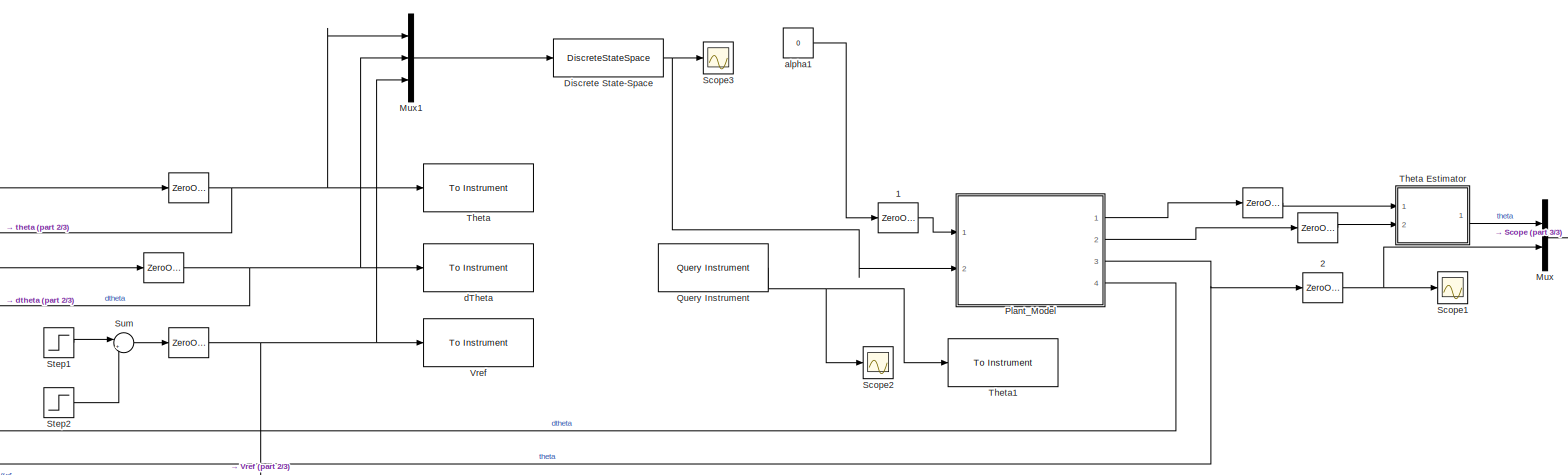
[diagram: root canvas - part 1/3, center side, full height]
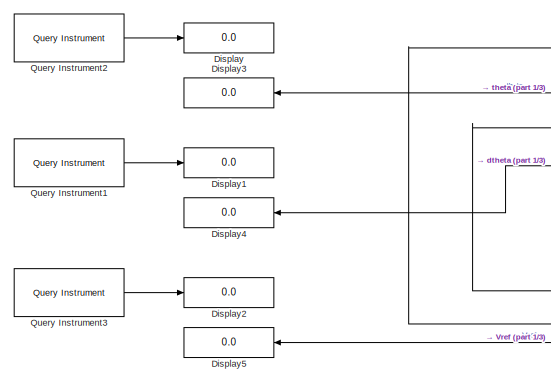
[diagram: root canvas - part 2/3, middle left region]
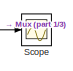
[diagram: root canvas - part 3/3, middle right region]
MODEL slx_5fc166b95c6e
KIND model
CONFIG AbsTol = auto
CONFIG EnableMultiTasking = off
CONFIG FixedStep = T
CONFIG MaxStep = auto
CONFIG MinStep = auto
CONFIG RelTol = 1e-3
CONFIG SampleTimeConstraint = Unconstrained
CONFIG Solver = FixedStepAuto
CONFIG SolverName = FixedStepAuto
CONFIG StartTime = 0.0
CONFIG StopTime = 20
BLOCK [ZeroOrderHold]  
  SampleTime = T
BLOCK [ZeroOrderHold]    
  SampleTime = T
BLOCK [ZeroOrderHold]     
  SampleTime = T
BLOCK [ZeroOrderHold]       
  SampleTime = T
BLOCK [ZeroOrderHold]         
  SampleTime = T
BLOCK [ZeroOrderHold]       1
  SampleTime = T
BLOCK [ZeroOrderHold]       2
  SampleTime = T
BLOCK [DiscreteStateSpace] Discrete State-Space
  A = Ad
  B = Bd
  C = Cd
  D = Dd
  SampleTime = T
BLOCK [Display] Display
  Decimation = 1
  Ports = [1]
BLOCK [Display] Display1
  Decimation = 1
  Ports = [1]
BLOCK [Display] Display2
  Decimation = 1
  Ports = [1]
BLOCK [Display] Display3
  Decimation = 1
  Ports = [1]
BLOCK [Display] Display4
  Decimation = 1
  Ports = [1]
BLOCK [Display] Display5
  Decimation = 1
  Ports = [1]
BLOCK [Mux] Mux
  DisplayOption = bar
  Inputs = 2
  Ports = [2, 1]
BLOCK [Mux] Mux1
  DisplayOption = bar
  Inputs = 3
  Ports = [3, 1]
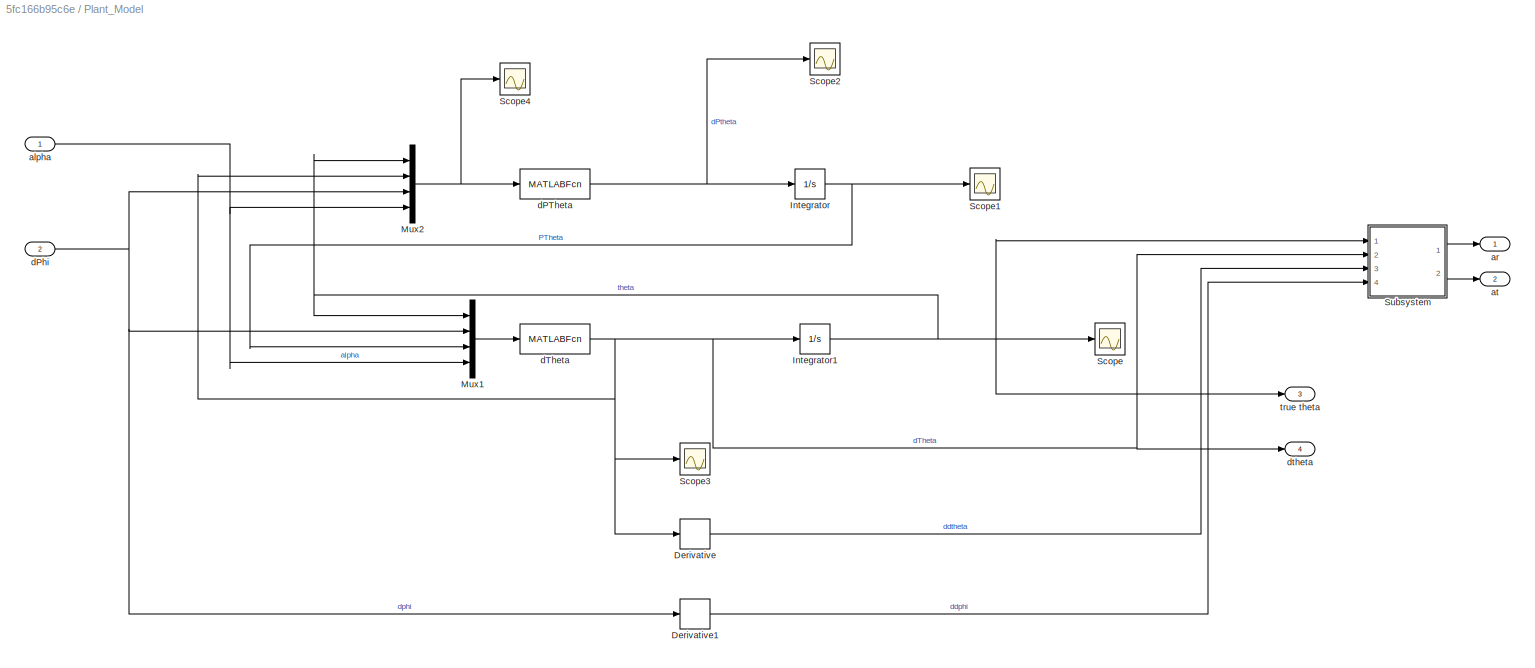
BLOCK [SubSystem] Plant_Model
  Ports = [2, 4]
  RequestExecContextInheritance = off
  Variant = off
BLOCK [Derivative] Plant_Model/Derivative
BLOCK [Derivative] Plant_Model/Derivative1
BLOCK [Integrator] Plant_Model/Integrator
  InitialCondition = Ptheta0
  Ports = [1, 1]
BLOCK [Integrator] Plant_Model/Integrator1
  InitialCondition = 0.1
  Ports = [1, 1]
BLOCK [Mux] Plant_Model/Mux1
  DisplayOption = bar
  Inputs = [1 1 1 1]
  Ports = [4, 1]
BLOCK [Mux] Plant_Model/Mux2
  DisplayOption = bar
  Inputs = [1 1 1 1]
  Ports = [4, 1]
BLOCK [Scope] Plant_Model/Scope
  NumInputPorts = 1
  Ports = [1]
  ScopeSpecificationString = Simulink.scopes.TimeScopeBlockCfg('CurrentConfiguration', extmgr.ConfigurationSet(extmgr.Configuration('Core','General UI',true),extmgr.Configuration('Core','Source UI',true),extmgr.Configuration('Sources','WiredSimulink',true),extmgr.Configuration('Visuals','Time Domain',true,'SerializedDisplays',{struct('MinYLimReal','-0.62943','MaxYLimReal','0.64888','YLabelReal','','MinYLimMag','0.00000','MaxY...<+1402ch>
BLOCK [Scope] Plant_Model/Scope1
  NumInputPorts = 1
  Ports = [1]
  ScopeSpecificationString = Simulink.scopes.TimeScopeBlockCfg('CurrentConfiguration', extmgr.ConfigurationSet(extmgr.Configuration('Core','General UI',true),extmgr.Configuration('Core','Source UI',true),extmgr.Configuration('Sources','WiredSimulink',true,'DataLoggingVariableName','ScopeData1'),extmgr.Configuration('Visuals','Time Domain',true,'SerializedDisplays',{struct('MinYLimReal','-1.00000','MaxYLimReal','1.00000','YLab...<+1426ch>
BLOCK [Scope] Plant_Model/Scope2
  NumInputPorts = 1
  Ports = [1]
  ScopeSpecificationString = Simulink.scopes.TimeScopeBlockCfg('CurrentConfiguration', extmgr.ConfigurationSet(extmgr.Configuration('Core','General UI',true),extmgr.Configuration('Core','Source UI',true),extmgr.Configuration('Sources','WiredSimulink',true,'DataLoggingVariableName','ScopeData2'),extmgr.Configuration('Visuals','Time Domain',true,'SerializedDisplays',{struct('MinYLimReal','-2761470967.33558','MaxYLimReal','27610...<+1463ch>
BLOCK [Scope] Plant_Model/Scope3
  NumInputPorts = 1
  Ports = [1]
  ScopeSpecificationString = Simulink.scopes.TimeScopeBlockCfg('CurrentConfiguration', extmgr.ConfigurationSet(extmgr.Configuration('Core','General UI',true),extmgr.Configuration('Core','Source UI',true),extmgr.Configuration('Sources','WiredSimulink',true,'DataLoggingVariableName','ScopeData3'),extmgr.Configuration('Visuals','Time Domain',true,'SerializedDisplays',{struct('MinYLimReal','-0.20128','MaxYLimReal','0.40169','YLab...<+1396ch>
BLOCK [Scope] Plant_Model/Scope4
  NumInputPorts = 1
  Ports = [1]
  ScopeSpecificationString = Simulink.scopes.TimeScopeBlockCfg('CurrentConfiguration', extmgr.ConfigurationSet(extmgr.Configuration('Core','General UI',true),extmgr.Configuration('Core','Source UI',true),extmgr.Configuration('Sources','WiredSimulink',true,'DataLoggingVariableName','ScopeData6'),extmgr.Configuration('Visuals','Time Domain',true,'SerializedDisplays',{struct('MinYLimReal','-53041074534.89084','MaxYLimReal','4773...<+1495ch>
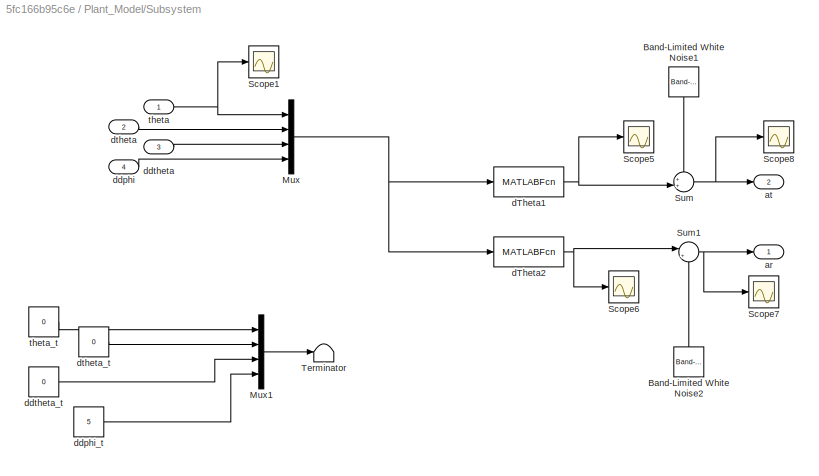
BLOCK [SubSystem] Plant_Model/Subsystem
  Ports = [4, 2]
  RequestExecContextInheritance = off
  Variant = off
BLOCK [Reference] Plant_Model/Subsystem/Band-Limited White Noise1  REF=simulink/Sources/Band-Limited
White Noise
  Ports = [0, 1]
  SourceBlock = simulink/Sources/Band-Limited\nWhite Noise
  SourceProductBaseCode = SL
  SourceProductName = Simulink
  SourceType = Band-Limited White Noise.
BLOCK [Reference] Plant_Model/Subsystem/Band-Limited White Noise2  REF=simulink/Sources/Band-Limited
White Noise
  Ports = [0, 1]
  SourceBlock = simulink/Sources/Band-Limited\nWhite Noise
  SourceProductBaseCode = SL
  SourceProductName = Simulink
  SourceType = Band-Limited White Noise.
BLOCK [Mux] Plant_Model/Subsystem/Mux
  DisplayOption = bar
  Ports = [4, 1]
BLOCK [Mux] Plant_Model/Subsystem/Mux1
  DisplayOption = bar
  Ports = [4, 1]
BLOCK [Scope] Plant_Model/Subsystem/Scope1
  NumInputPorts = 1
  Ports = [1]
  ScopeSpecificationString = Simulink.scopes.TimeScopeBlockCfg('CurrentConfiguration', extmgr.ConfigurationSet(extmgr.Configuration('Core','General UI',true),extmgr.Configuration('Core','Source UI',true),extmgr.Configuration('Sources','WiredSimulink',true,'DataLoggingVariableName','ScopeData1'),extmgr.Configuration('Visuals','Time Domain',true,'SerializedDisplays',{struct('MinYLimReal','-1.00000','MaxYLimReal','1.00000','YLab...<+1469ch>
BLOCK [Scope] Plant_Model/Subsystem/Scope5
  NumInputPorts = 1
  Ports = [1]
  ScopeSpecificationString = Simulink.scopes.TimeScopeBlockCfg('CurrentConfiguration', extmgr.ConfigurationSet(extmgr.Configuration('Core','General UI',true),extmgr.Configuration('Core','Source UI',true),extmgr.Configuration('Sources','WiredSimulink',true,'DataLoggingVariableName','ScopeData1'),extmgr.Configuration('Visuals','Time Domain',true,'SerializedDisplays',{struct('MinYLimReal','-1.00000','MaxYLimReal','1.00000','YLab...<+1470ch>
BLOCK [Scope] Plant_Model/Subsystem/Scope6
  NumInputPorts = 1
  Ports = [1]
  ScopeSpecificationString = Simulink.scopes.TimeScopeBlockCfg('CurrentConfiguration', extmgr.ConfigurationSet(extmgr.Configuration('Core','General UI',true),extmgr.Configuration('Core','Source UI',true),extmgr.Configuration('Sources','WiredSimulink',true,'DataLoggingVariableName','ScopeData2'),extmgr.Configuration('Visuals','Time Domain',true,'SerializedDisplays',{struct('MinYLimReal','9.62428','MaxYLimReal','9.9909','YLabel...<+1416ch>
BLOCK [Scope] Plant_Model/Subsystem/Scope7
  NumInputPorts = 1
  Ports = [1]
  ScopeSpecificationString = Simulink.scopes.TimeScopeBlockCfg('CurrentConfiguration', extmgr.ConfigurationSet(extmgr.Configuration('Core','General UI',true),extmgr.Configuration('Core','Source UI',true),extmgr.Configuration('Sources','WiredSimulink',true,'DataLoggingVariableName','ScopeData1'),extmgr.Configuration('Visuals','Time Domain',true,'SerializedDisplays',{struct('MinYLimReal','-1169.51957','MaxYLimReal','10427.46336...<+1445ch>
BLOCK [Scope] Plant_Model/Subsystem/Scope8
  NumInputPorts = 1
  Ports = [1]
  ScopeSpecificationString = Simulink.scopes.TimeScopeBlockCfg('CurrentConfiguration', extmgr.ConfigurationSet(extmgr.Configuration('Core','General UI',true),extmgr.Configuration('Core','Source UI',true),extmgr.Configuration('Sources','WiredSimulink',true,'DataLoggingVariableName','ScopeData2'),extmgr.Configuration('Visuals','Time Domain',true,'SerializedDisplays',{struct('MinYLimReal','-14365979.81975','MaxYLimReal','1596220...<+1470ch>
BLOCK [Sum] Plant_Model/Subsystem/Sum
  IconShape = round
  InputSameDT = off
  Inputs = ++|
  OutDataTypeStr = Inherit: Inherit via internal rule
  Ports = [2, 1]
  SaturateOnIntegerOverflow = off
BLOCK [Sum] Plant_Model/Subsystem/Sum1
  IconShape = round
  InputSameDT = off
  Inputs = |++
  OutDataTypeStr = Inherit: Inherit via internal rule
  Ports = [2, 1]
  SaturateOnIntegerOverflow = off
BLOCK [Terminator] Plant_Model/Subsystem/Terminator
BLOCK [Outport] Plant_Model/Subsystem/ar
  IconDisplay = Port number
  PortDimensions = [1 1]
BLOCK [Outport] Plant_Model/Subsystem/at
  IconDisplay = Port number
  Port = 2
  PortDimensions = [1 1]
BLOCK [MATLABFcn] Plant_Model/Subsystem/dTheta1
  MATLABFcn = Eqn3
  Output1D = off
  OutputDimensions = [1 1]
  Ports = [1, 1]
BLOCK [MATLABFcn] Plant_Model/Subsystem/dTheta2
  MATLABFcn = Eqn4
  Output1D = off
  OutputDimensions = [1 1]
  Ports = [1, 1]
BLOCK [Inport] Plant_Model/Subsystem/ddphi
  IconDisplay = Port number
  Port = 4
BLOCK [Constant] Plant_Model/Subsystem/ddphi_t
  Value = 5
BLOCK [Inport] Plant_Model/Subsystem/ddtheta
  IconDisplay = Port number
  Port = 3
BLOCK [Constant] Plant_Model/Subsystem/ddtheta_t
  Value = 0
BLOCK [Inport] Plant_Model/Subsystem/dtheta
  IconDisplay = Port number
  Port = 2
BLOCK [Constant] Plant_Model/Subsystem/dtheta_t
  Value = 0
BLOCK [Inport] Plant_Model/Subsystem/theta
  IconDisplay = Port number
BLOCK [Constant] Plant_Model/Subsystem/theta_t
  Value = 0
BLOCK [Inport] Plant_Model/alpha 
  IconDisplay = Port number
BLOCK [Outport] Plant_Model/ar
  IconDisplay = Port number
  PortDimensions = [1 1]
BLOCK [Outport] Plant_Model/at
  IconDisplay = Port number
  Port = 2
  PortDimensions = [1 1]
BLOCK [MATLABFcn] Plant_Model/dPTheta
  MATLABFcn = Eqn1
  Output1D = off
  OutputDimensions = [1 1]
  Ports = [1, 1]
BLOCK [Inport] Plant_Model/dPhi
  IconDisplay = Port number
  Port = 2
BLOCK [MATLABFcn] Plant_Model/dTheta
  MATLABFcn = Eqn2
  Output1D = off
  OutputDimensions = [1 1]
  Ports = [1, 1]
BLOCK [Outport] Plant_Model/dtheta
  IconDisplay = Port number
  Port = 4
  PortDimensions = [1 1]
BLOCK [Outport] Plant_Model/true theta
  IconDisplay = Port number
  Port = 3
  PortDimensions = [1 1]
BLOCK [Reference] Query Instrument  REF=instrumentlib/Query Instrument
  Commented = on
  Ports = [0, 1]
  Priority = 7
  SourceBlock = instrumentlib/Query Instrument
  SourceProductBaseCode = IC
  SourceProductName = Instrument Control Toolbox
  SourceType = queryinstrument
BLOCK [Reference] Query Instrument1  REF=instrumentlib/Query Instrument
  Commented = on
  Ports = [0, 1]
  Priority = 5
  SourceBlock = instrumentlib/Query Instrument
  SourceProductBaseCode = IC
  SourceProductName = Instrument Control Toolbox
  SourceType = queryinstrument
BLOCK [Reference] Query Instrument2  REF=instrumentlib/Query Instrument
  Commented = on
  Ports = [0, 1]
  Priority = 4
  SourceBlock = instrumentlib/Query Instrument
  SourceProductBaseCode = IC
  SourceProductName = Instrument Control Toolbox
  SourceType = queryinstrument
BLOCK [Reference] Query Instrument3  REF=instrumentlib/Query Instrument
  Commented = on
  Ports = [0, 1]
  Priority = 6
  SourceBlock = instrumentlib/Query Instrument
  SourceProductBaseCode = IC
  SourceProductName = Instrument Control Toolbox
  SourceType = queryinstrument
BLOCK [Scope] Scope
  NumInputPorts = 1
  Ports = [1]
  ScopeSpecificationString = Simulink.scopes.TimeScopeBlockCfg('CurrentConfiguration', extmgr.ConfigurationSet(extmgr.Configuration('Core','General UI',true),extmgr.Configuration('Core','Source UI',true),extmgr.Configuration('Sources','WiredSimulink',true),extmgr.Configuration('Visuals','Time Domain',true,'SerializedDisplays',{struct('MinYLimReal','-0.14443','MaxYLimReal','0.12907','YLabelReal','','MinYLimMag','0.00000','MaxY...<+1383ch>
BLOCK [Scope] Scope1
  NumInputPorts = 1
  Ports = [1]
  ScopeSpecificationString = Simulink.scopes.TimeScopeBlockCfg('CurrentConfiguration', extmgr.ConfigurationSet(extmgr.Configuration('Core','General UI',true,'FigureColor',[1 1 1]),extmgr.Configuration('Core','Source UI',true),extmgr.Configuration('Sources','WiredSimulink',true,'DataLoggingVariableName','ScopeData1'),extmgr.Configuration('Visuals','Time Domain',true,'SerializedDisplays',{struct('MinYLimReal','-0.14443','MaxYLi...<+1653ch>
BLOCK [Scope] Scope2
  NumInputPorts = 1
  Ports = [1]
  ScopeSpecificationString = Simulink.scopes.TimeScopeBlockCfg('CurrentConfiguration', extmgr.ConfigurationSet(extmgr.Configuration('Core','General UI',true),extmgr.Configuration('Core','Source UI',true),extmgr.Configuration('Sources','WiredSimulink',true,'DataLoggingVariableName','ScopeData1'),extmgr.Configuration('Visuals','Time Domain',true,'SerializedDisplays',{struct('MinYLimReal','-10.79572','MaxYLimReal','13.43175','YL...<+1486ch>
BLOCK [Scope] Scope3
  NumInputPorts = 1
  Ports = [1]
  ScopeSpecificationString = Simulink.scopes.TimeScopeBlockCfg('CurrentConfiguration', extmgr.ConfigurationSet(extmgr.Configuration('Core','General UI',true,'FigureColor',[1 1 1]),extmgr.Configuration('Core','Source UI',true),extmgr.Configuration('Sources','WiredSimulink',true,'DataLoggingVariableName','ScopeData1'),extmgr.Configuration('Visuals','Time Domain',true,'SerializedDisplays',{struct('MinYLimReal','-13.33771','MaxYL...<+1700ch>
BLOCK [Step] Step1
  After = -.5
  SampleTime = 0
  Time = 0
BLOCK [Step] Step2
  After = .5
  SampleTime = 0
  Time = 5
BLOCK [Sum] Sum
  IconShape = round
  InputSameDT = off
  Inputs = |++
  OutDataTypeStr = Inherit: Inherit via internal rule
  Ports = [2, 1]
  SaturateOnIntegerOverflow = off
BLOCK [Reference] Theta  REF=instrumentlib/To Instrument
  Commented = on
  Ports = [1]
  Priority = 1
  SourceBlock = instrumentlib/To Instrument
  SourceProductBaseCode = IC
  SourceProductName = Instrument Control Toolbox
  SourceType = toinstrument
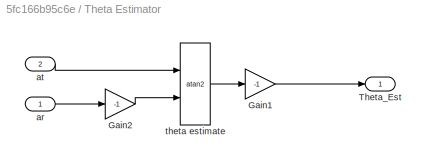
BLOCK [SubSystem] Theta Estimator
  Ports = [2, 1]
  RequestExecContextInheritance = off
  Variant = off
BLOCK [Gain] Theta Estimator/Gain1
  Gain = -1
  OutDataTypeStr = Inherit: Inherit via internal rule
  ParamDataTypeStr = Inherit: Inherit via internal rule
  SaturateOnIntegerOverflow = off
BLOCK [Gain] Theta Estimator/Gain2
  Gain = -1
  OutDataTypeStr = Inherit: Inherit via internal rule
  ParamDataTypeStr = Inherit: Inherit via internal rule
  SaturateOnIntegerOverflow = off
BLOCK [Outport] Theta Estimator/Theta_Est
  IconDisplay = Port number
BLOCK [Inport] Theta Estimator/ar
  IconDisplay = Port number
BLOCK [Inport] Theta Estimator/at
  IconDisplay = Port number
  Port = 2
BLOCK [Trigonometry] Theta Estimator/theta estimate
  Operator = atan2
  OutputSignalType = real
  Ports = [2, 1]
BLOCK [Reference] Theta1  REF=instrumentlib/To Instrument
  Commented = on
  Ports = [1]
  Priority = 8
  SourceBlock = instrumentlib/To Instrument
  SourceProductBaseCode = IC
  SourceProductName = Instrument Control Toolbox
  SourceType = toinstrument
BLOCK [Reference] Vref  REF=instrumentlib/To Instrument
  Commented = on
  Ports = [1]
  Priority = 3
  SourceBlock = instrumentlib/To Instrument
  SourceProductBaseCode = IC
  SourceProductName = Instrument Control Toolbox
  SourceType = toinstrument
BLOCK [Constant] alpha1
  Value = 0
BLOCK [Reference] dTheta  REF=instrumentlib/To Instrument
  Commented = on
  Ports = [1]
  Priority = 2
  SourceBlock = instrumentlib/To Instrument
  SourceProductBaseCode = IC
  SourceProductName = Instrument Control Toolbox
  SourceType = toinstrument
NET         :1 -> Display4:1, Mux1:2, dTheta:1
LINE       1:1 -> Plant_Model:1
NET       2:1 -> Mux:2, Scope1:1
NET       :1 -> Display3:1, Mux1:1, Theta:1
NET     :1 -> Display5:1, Mux1:3, Vref:1
LINE    :1 -> Theta Estimator:1
LINE  :1 -> Theta Estimator:2
NET Discrete State-Space:1 -> Plant_Model:2, Scope3:1
LINE Mux1:1 -> Discrete State-Space:1
LINE Mux:1 -> Scope:1
LINE Plant_Model/Derivative1:1 -> Plant_Model/Subsystem:4
LINE Plant_Model/Derivative:1 -> Plant_Model/Subsystem:3
NET Plant_Model/Integrator1:1 -> Plant_Model/Mux1:1, Plant_Model/Mux2:1, Plant_Model/Scope:1, Plant_Model/Subsystem:1, Plant_Model/true theta:1
NET Plant_Model/Integrator:1 -> Plant_Model/Mux1:3, Plant_Model/Scope1:1
LINE Plant_Model/Mux1:1 -> Plant_Model/dTheta:1
NET Plant_Model/Mux2:1 -> Plant_Model/Scope4:1, Plant_Model/dPTheta:1
LINE Plant_Model/Subsystem/Band-Limited White Noise1:1 -> Plant_Model/Subsystem/Sum:1
LINE Plant_Model/Subsystem/Band-Limited White Noise2:1 -> Plant_Model/Subsystem/Sum1:2
LINE Plant_Model/Subsystem/Mux1:1 -> Plant_Model/Subsystem/Terminator:1
NET Plant_Model/Subsystem/Mux:1 -> Plant_Model/Subsystem/dTheta1:1, Plant_Model/Subsystem/dTheta2:1
NET Plant_Model/Subsystem/Sum1:1 -> Plant_Model/Subsystem/Scope7:1, Plant_Model/Subsystem/ar:1
NET Plant_Model/Subsystem/Sum:1 -> Plant_Model/Subsystem/Scope8:1, Plant_Model/Subsystem/at:1
NET Plant_Model/Subsystem/dTheta1:1 -> Plant_Model/Subsystem/Scope5:1, Plant_Model/Subsystem/Sum:2
NET Plant_Model/Subsystem/dTheta2:1 -> Plant_Model/Subsystem/Scope6:1, Plant_Model/Subsystem/Sum1:1
LINE Plant_Model/Subsystem/ddphi:1 -> Plant_Model/Subsystem/Mux:4
LINE Plant_Model/Subsystem/ddphi_t:1 -> Plant_Model/Subsystem/Mux1:4
LINE Plant_Model/Subsystem/ddtheta:1 -> Plant_Model/Subsystem/Mux:3
LINE Plant_Model/Subsystem/ddtheta_t:1 -> Plant_Model/Subsystem/Mux1:3
LINE Plant_Model/Subsystem/dtheta:1 -> Plant_Model/Subsystem/Mux:2
LINE Plant_Model/Subsystem/dtheta_t:1 -> Plant_Model/Subsystem/Mux1:2
NET Plant_Model/Subsystem/theta:1 -> Plant_Model/Subsystem/Mux:1, Plant_Model/Subsystem/Scope1:1
LINE Plant_Model/Subsystem/theta_t:1 -> Plant_Model/Subsystem/Mux1:1
LINE Plant_Model/Subsystem:1 -> Plant_Model/ar:1
LINE Plant_Model/Subsystem:2 -> Plant_Model/at:1
NET Plant_Model/alpha :1 -> Plant_Model/Mux1:4, Plant_Model/Mux2:4
NET Plant_Model/dPTheta:1 -> Plant_Model/Integrator:1, Plant_Model/Scope2:1
NET Plant_Model/dPhi:1 -> Plant_Model/Derivative1:1, Plant_Model/Mux1:2, Plant_Model/Mux2:3
NET Plant_Model/dTheta:1 -> Plant_Model/Derivative:1, Plant_Model/Integrator1:1, Plant_Model/Mux2:2, Plant_Model/Scope3:1, Plant_Model/Subsystem:2, Plant_Model/dtheta:1
LINE Plant_Model:1 ->    :1
LINE Plant_Model:2 ->  :1
NET Plant_Model:3 ->       2:1,       :1
LINE Plant_Model:4 ->         :1
LINE Query Instrument1:1 -> Display1:1
LINE Query Instrument2:1 -> Display:1
LINE Query Instrument3:1 -> Display2:1
NET Query Instrument:1 -> Scope2:1, Theta1:1
LINE Step1:1 -> Sum:1
LINE Step2:1 -> Sum:2
LINE Sum:1 ->     :1
LINE Theta Estimator/Gain1:1 -> Theta Estimator/Theta_Est:1
LINE Theta Estimator/Gain2:1 -> Theta Estimator/theta estimate:2
LINE Theta Estimator/ar:1 -> Theta Estimator/Gain2:1
LINE Theta Estimator/at:1 -> Theta Estimator/theta estimate:1
LINE Theta Estimator/theta estimate:1 -> Theta Estimator/Gain1:1
LINE Theta Estimator:1 -> Mux:1
LINE alpha1:1 ->       1:1
note: NET lines group one-source signal fan-out (src -> all destinations, sorted); 1:1 wires keep LINE
